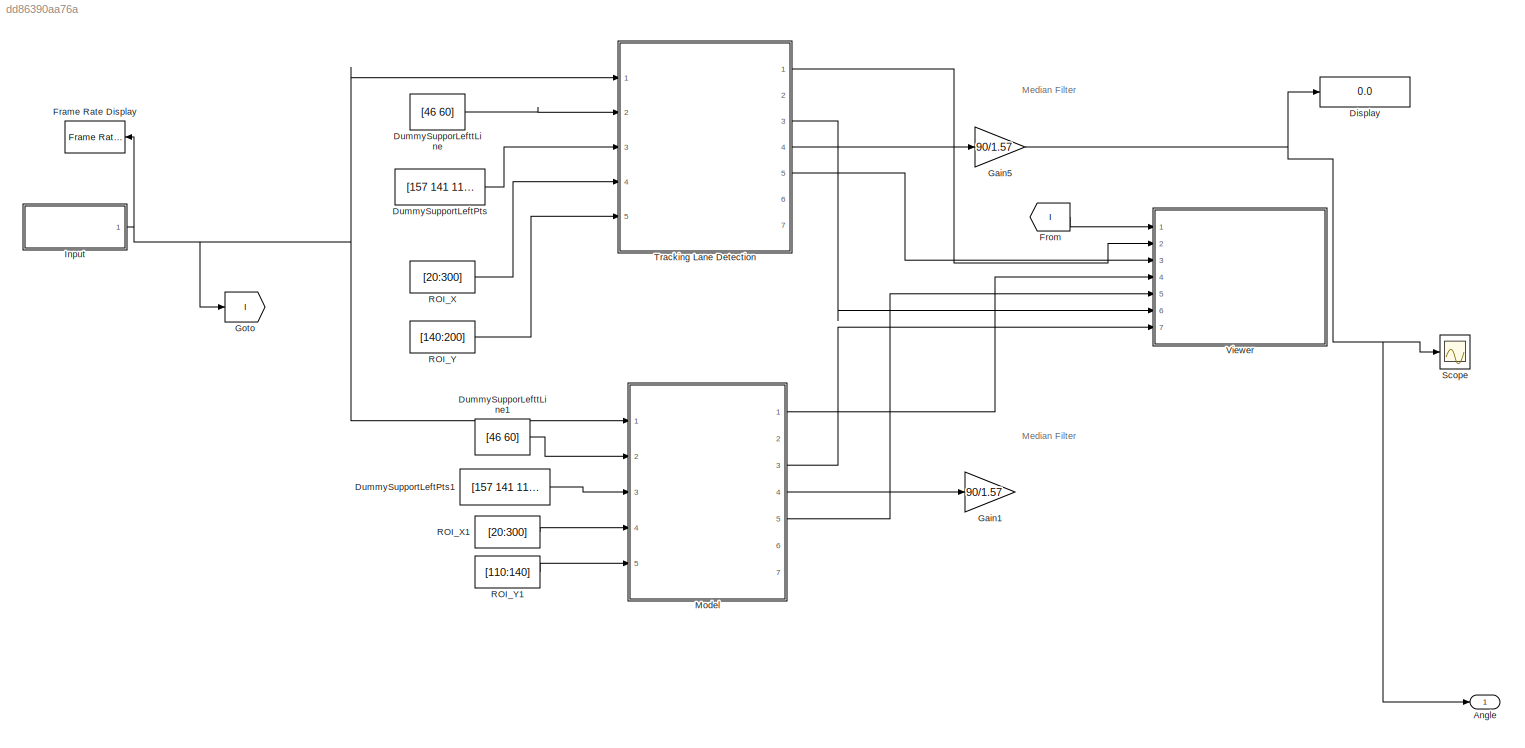
MODEL slx_dd86390aa76a
KIND model
CONFIG AbsTol = auto
CONFIG EnableMultiTasking = on
CONFIG FixedStep = auto
CONFIG MaxStep = auto
CONFIG MinStep = auto
CONFIG RelTol = 1e-3
CONFIG SampleTimeConstraint = Unconstrained
CONFIG Solver = FixedStepAuto
CONFIG SolverName = FixedStepAuto
CONFIG StartTime = 0.0
CONFIG StopTime = 10.0
BLOCK [Outport] Angle
  IconDisplay = Port number
BLOCK [Display] Display
  Decimation = 1
  Ports = [1]
BLOCK [Constant] DummySupporLefttLine
  OutDataTypeStr = double
  Value = [46 60]
  VectorParams1D = off
BLOCK [Constant] DummySupporLefttLine1
  Commented = on
  OutDataTypeStr = double
  Value = [46 60]
  VectorParams1D = off
BLOCK [Constant] DummySupportLeftPts
  OutDataTypeStr = double
  Value = [157 141 111 201]
BLOCK [Constant] DummySupportLeftPts1
  Commented = on
  OutDataTypeStr = double
  Value = [157 141 111 201]
BLOCK [Reference] Frame Rate Display  REF=visionsinks/Frame Rate
Display
  Ports = [1]
  SourceBlock = visionsinks/Frame Rate\nDisplay
  SourceProductBaseCode = VP
  SourceProductName = Computer Vision System Toolbox
  SourceType = Frame Rate Display
BLOCK [From] From
  GotoTag = I
BLOCK [Gain] Gain1
  Gain = 90/1.57
  OutDataTypeStr = Inherit: Inherit via internal rule
  ParamDataTypeStr = Inherit: Inherit via internal rule
  SaturateOnIntegerOverflow = off
BLOCK [Gain] Gain5
  Gain = 90/1.57
  OutDataTypeStr = Inherit: Inherit via internal rule
  ParamDataTypeStr = Inherit: Inherit via internal rule
  SaturateOnIntegerOverflow = off
BLOCK [Goto] Goto
  GotoTag = I
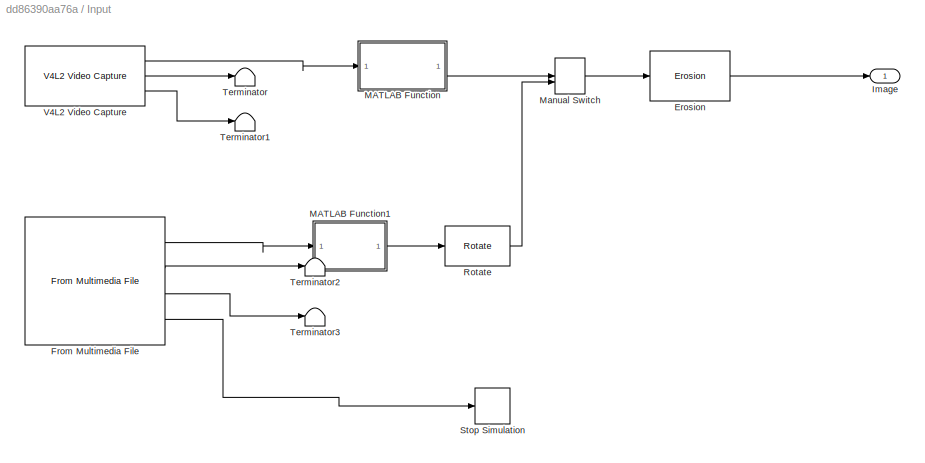
BLOCK [SubSystem] Input 
  Ports = [0, 1]
  RequestExecContextInheritance = off
  Variant = off
BLOCK [Reference] Input /Erosion  REF=visionmorphops/Erosion
  Ports = [1, 1]
  SourceBlock = visionmorphops/Erosion
  SourceProductBaseCode = VP
  SourceProductName = Computer Vision System Toolbox
  SourceType = Erosion
BLOCK [Reference] Input /From Multimedia File  REF=dspvision/From Multimedia File
  Commented = on
  Ports = [0, 4]
  SourceBlock = dspvision/From Multimedia File
  SourceProductBaseCode = VP
  SourceProductName = Computer Vision System Toolbox
  SourceType = From Multimedia File
BLOCK [Outport] Input /Image
  IconDisplay = Port number
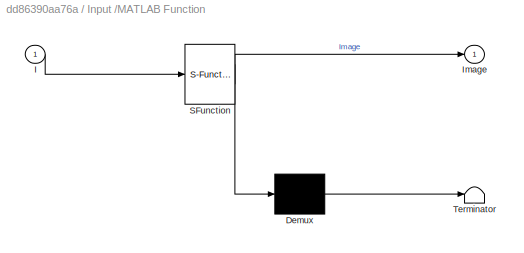
BLOCK [SubSystem] Input /MATLAB Function
  ErrorFcn = Stateflow.Translate.translate
  PermitHierarchicalResolution = ExplicitOnly
  Ports = [1, 1]
  RequestExecContextInheritance = off
  SFBlockType = MATLAB Function
  TreatAsAtomicUnit = on
  Variant = off
BLOCK [Demux] Input /MATLAB Function/ Demux 
  Outputs = 1
  Ports = [1, 1]
BLOCK [S-Function] Input /MATLAB Function/ SFunction 
  EnableBusSupport = on
  FunctionName = sf_sfun
  PortCounts = [1 2]
  Ports = [1, 2]
  SFcnIsStateOwnerBlock = off
  SFunctionDeploymentMode = off
  Tag = Stateflow S-Function picam_lanedepart 2
BLOCK [Terminator] Input /MATLAB Function/ Terminator 
BLOCK [Inport] Input /MATLAB Function/I
  IconDisplay = Port number
BLOCK [Outport] Input /MATLAB Function/Image
  IconDisplay = Port number
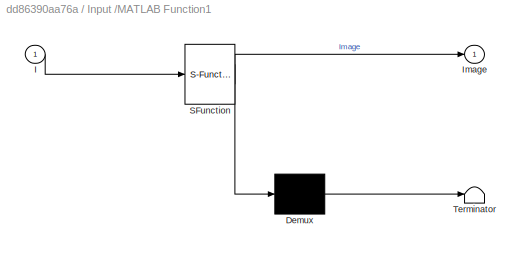
BLOCK [SubSystem] Input /MATLAB Function1
  Commented = on
  ErrorFcn = Stateflow.Translate.translate
  PermitHierarchicalResolution = ExplicitOnly
  Ports = [1, 1]
  RequestExecContextInheritance = off
  SFBlockType = MATLAB Function
  TreatAsAtomicUnit = on
  Variant = off
BLOCK [Demux] Input /MATLAB Function1/ Demux 
  Outputs = 1
  Ports = [1, 1]
BLOCK [S-Function] Input /MATLAB Function1/ SFunction 
  EnableBusSupport = on
  FunctionName = sf_sfun
  PortCounts = [1 2]
  Ports = [1, 2]
  SFcnIsStateOwnerBlock = off
  SFunctionDeploymentMode = off
  Tag = Stateflow S-Function picam_lanedepart 1
BLOCK [Terminator] Input /MATLAB Function1/ Terminator 
BLOCK [Inport] Input /MATLAB Function1/I
  IconDisplay = Port number
BLOCK [Outport] Input /MATLAB Function1/Image
  IconDisplay = Port number
BLOCK [ManualSwitch] Input /Manual Switch
BLOCK [Reference] Input /Rotate  REF=visiongeotforms/Rotate
  Commented = on
  Ports = [1, 1]
  SourceBlock = visiongeotforms/Rotate
  SourceProductBaseCode = VP
  SourceProductName = Computer Vision System Toolbox
  SourceType = Rotate
BLOCK [Stop] Input /Stop Simulation
  Commented = on
BLOCK [Terminator] Input /Terminator
BLOCK [Terminator] Input /Terminator1
BLOCK [Terminator] Input /Terminator2
  Commented = on
BLOCK [Terminator] Input /Terminator3
  Commented = on
BLOCK [Reference] Input /V4L2 Video Capture  REF=embdlinuxlib/V4L2 Video Capture
  Ports = [0, 3]
  SourceBlock = embdlinuxlib/V4L2 Video Capture
  SourceType = V4L2 Video Capture
BLOCK [ModelReference] Model
  Commented = on
  ModelNameDialog = picam_awareness.slx
  ModelReferenceVersion = 1.333
  Ports = [5, 7]
  Variant = off
BLOCK [Constant] ROI_X
  LockScale = on
  Value = [20:300]
BLOCK [Constant] ROI_X1
  Commented = on
  LockScale = on
  Value = [20:300]
BLOCK [Constant] ROI_Y
  LockScale = on
  Value = [140:200]
BLOCK [Constant] ROI_Y1
  Commented = on
  LockScale = on
  Value = [110:140]
BLOCK [Scope] Scope
  NumInputPorts = 1
  Ports = [1]
  ScopeSpecificationString = Simulink.scopes.TimeScopeBlockCfg('CurrentConfiguration', extmgr.ConfigurationSet(extmgr.Configuration('Core','General UI',true),extmgr.Configuration('Core','Source UI',true),extmgr.Configuration('Sources','WiredSimulink',true),extmgr.Configuration('Visuals','Time Domain',true,'SerializedDisplays',{struct('MinYLimReal','-3.07886','MaxYLimReal','5.2918','YLabelReal','','MinYLimMag','0.00000','MaxYL...<+1410ch>
BLOCK [ModelReference] Tracking Lane Detection
  ModelNameDialog = picam_track.slx
  ModelReferenceVersion = 1.6
  Ports = [5, 7]
  Variant = off
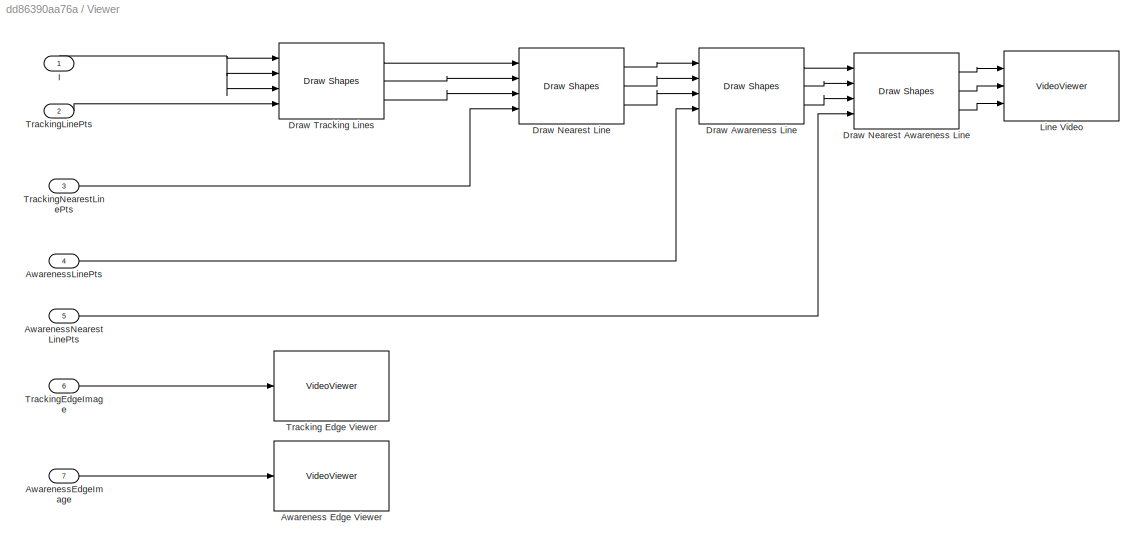
BLOCK [SubSystem] Viewer
  Ports = [7]
  RequestExecContextInheritance = off
  Variant = off
BLOCK [VideoViewer] Viewer/Awareness Edge Viewer
  FigPos = [863 724 418 304]
  Ports = [1]
  ScopeSpecificationString = vipscopes.VideoViewerScopeCfg('CurrentConfiguration', extmgr.ConfigurationSet(extmgr.Configuration('Core','General UI',true),extmgr.Configuration('Core','Source UI',true),extmgr.Configuration('Sources','WiredSimulink',true),extmgr.Configuration('Visuals','Video',true),extmgr.Configuration('Tools','Image Navigation Tools',true),extmgr.Configuration('Tools','Image Tool',true),extmgr.Configuration('T...<+74ch>
BLOCK [Inport] Viewer/AwarenessEdgeImage
  IconDisplay = Port number
  Port = 7
BLOCK [Inport] Viewer/AwarenessLinePts
  IconDisplay = Port number
  Port = 4
BLOCK [Inport] Viewer/AwarenessNearestLinePts
  IconDisplay = Port number
  Port = 5
BLOCK [Reference] Viewer/Draw Awareness Line  REF=visiontextngfix/Draw Shapes
  Ports = [4, 3]
  SourceBlock = visiontextngfix/Draw Shapes
  SourceProductBaseCode = VP
  SourceProductName = Computer Vision System Toolbox
  SourceType = Draw Shapes
BLOCK [Reference] Viewer/Draw Nearest Awareness Line  REF=visiontextngfix/Draw Shapes
  Ports = [4, 3]
  SourceBlock = visiontextngfix/Draw Shapes
  SourceProductBaseCode = VP
  SourceProductName = Computer Vision System Toolbox
  SourceType = Draw Shapes
BLOCK [Reference] Viewer/Draw Nearest Line  REF=visiontextngfix/Draw Shapes
  Ports = [4, 3]
  SourceBlock = visiontextngfix/Draw Shapes
  SourceProductBaseCode = VP
  SourceProductName = Computer Vision System Toolbox
  SourceType = Draw Shapes
BLOCK [Reference] Viewer/Draw Tracking Lines  REF=visiontextngfix/Draw Shapes
  Ports = [4, 3]
  SourceBlock = visiontextngfix/Draw Shapes
  SourceProductBaseCode = VP
  SourceProductName = Computer Vision System Toolbox
  SourceType = Draw Shapes
BLOCK [Inport] Viewer/I
  IconDisplay = Port number
  OutDataTypeStr = uint8
BLOCK [VideoViewer] Viewer/Line Video
  FigPos = [61 592.4 417.6 304]
  Ports = [3]
  ScopeSpecificationString = vipscopes.VideoViewerScopeCfg('CurrentConfiguration', extmgr.ConfigurationSet(extmgr.Configuration('Core','General UI',true),extmgr.Configuration('Core','Source UI',true),extmgr.Configuration('Sources','WiredSimulink',true),extmgr.Configuration('Visuals','Video',true),extmgr.Configuration('Tools','Image Navigation Tools',true),extmgr.Configuration('Tools','Image Tool',true),extmgr.Configuration('T...<+78ch>
  colormapValue = gray(256)
  imagePorts = separate color signals
BLOCK [VideoViewer] Viewer/Tracking Edge Viewer
  FigPos = [575 751 418 304]
  Ports = [1]
  ScopeSpecificationString = vipscopes.VideoViewerScopeCfg('CurrentConfiguration', extmgr.ConfigurationSet(extmgr.Configuration('Core','General UI',true),extmgr.Configuration('Core','Source UI',true),extmgr.Configuration('Sources','WiredSimulink',true),extmgr.Configuration('Visuals','Video',true),extmgr.Configuration('Tools','Image Navigation Tools',true),extmgr.Configuration('Tools','Image Tool',true),extmgr.Configuration('T...<+74ch>
BLOCK [Inport] Viewer/TrackingEdgeImage
  IconDisplay = Port number
  Port = 6
BLOCK [Inport] Viewer/TrackingLinePts
  IconDisplay = Port number
  Port = 2
BLOCK [Inport] Viewer/TrackingNearestLinePts
  IconDisplay = Port number
  Port = 3
ANNOTATION (root): Median Filter
LINE DummySupporLefttLine1:1 -> Model:2
LINE DummySupporLefttLine:1 -> Tracking Lane Detection:2
LINE DummySupportLeftPts1:1 -> Model:3
LINE DummySupportLeftPts:1 -> Tracking Lane Detection:3
LINE From:1 -> Viewer:1
NET Gain5:1 -> Angle:1, Display:1, Scope:1
LINE Input /Erosion:1 -> Input /Image:1
LINE Input /From Multimedia File:1 -> Input /MATLAB Function1:1
LINE Input /From Multimedia File:2 -> Input /Terminator2:1
LINE Input /From Multimedia File:3 -> Input /Terminator3:1
LINE Input /From Multimedia File:4 -> Input /Stop Simulation:1
LINE Input /MATLAB Function1:1 -> Input /Rotate:1
LINE Input /MATLAB Function:1 -> Input /Manual Switch:1
LINE Input /Manual Switch:1 -> Input /Erosion:1
LINE Input /Rotate:1 -> Input /Manual Switch:2
LINE Input /V4L2 Video Capture:1 -> Input /MATLAB Function:1
LINE Input /V4L2 Video Capture:2 -> Input /Terminator:1
LINE Input /V4L2 Video Capture:3 -> Input /Terminator1:1
NET Input :1 -> Frame Rate Display:1, Goto:1, Model:1, Tracking Lane Detection:1
LINE Model:1 -> Viewer:4
LINE Model:3 -> Viewer:7
LINE Model:4 -> Gain1:1
LINE Model:5 -> Viewer:5
LINE ROI_X1:1 -> Model:4
LINE ROI_X:1 -> Tracking Lane Detection:4
LINE ROI_Y1:1 -> Model:5
LINE ROI_Y:1 -> Tracking Lane Detection:5
LINE Tracking Lane Detection:1 -> Viewer:2
LINE Tracking Lane Detection:3 -> Viewer:6
LINE Tracking Lane Detection:4 -> Gain5:1
LINE Tracking Lane Detection:5 -> Viewer:3
LINE Viewer/AwarenessEdgeImage:1 -> Viewer/Awareness Edge Viewer:1
LINE Viewer/AwarenessLinePts:1 -> Viewer/Draw Awareness Line:4
LINE Viewer/AwarenessNearestLinePts:1 -> Viewer/Draw Nearest Awareness Line:4
LINE Viewer/Draw Awareness Line:1 -> Viewer/Draw Nearest Awareness Line:1
LINE Viewer/Draw Awareness Line:2 -> Viewer/Draw Nearest Awareness Line:2
LINE Viewer/Draw Awareness Line:3 -> Viewer/Draw Nearest Awareness Line:3
LINE Viewer/Draw Nearest Awareness Line:1 -> Viewer/Line Video:1
LINE Viewer/Draw Nearest Awareness Line:2 -> Viewer/Line Video:2
LINE Viewer/Draw Nearest Awareness Line:3 -> Viewer/Line Video:3
LINE Viewer/Draw Nearest Line:1 -> Viewer/Draw Awareness Line:1
LINE Viewer/Draw Nearest Line:2 -> Viewer/Draw Awareness Line:2
LINE Viewer/Draw Nearest Line:3 -> Viewer/Draw Awareness Line:3
LINE Viewer/Draw Tracking Lines:1 -> Viewer/Draw Nearest Line:1
LINE Viewer/Draw Tracking Lines:2 -> Viewer/Draw Nearest Line:2
LINE Viewer/Draw Tracking Lines:3 -> Viewer/Draw Nearest Line:3
NET Viewer/I:1 -> Viewer/Draw Tracking Lines:1, Viewer/Draw Tracking Lines:2, Viewer/Draw Tracking Lines:3
LINE Viewer/TrackingEdgeImage:1 -> Viewer/Tracking Edge Viewer:1
LINE Viewer/TrackingLinePts:1 -> Viewer/Draw Tracking Lines:4
LINE Viewer/TrackingNearestLinePts:1 -> Viewer/Draw Nearest Line:4
note: NET lines group one-source signal fan-out (src -> all destinations, sorted); 1:1 wires keep LINE
CHART Input
/MATLAB Function1 states=1 transitions=1
  STATE_LABEL 'eML_blk_kernel()'
  STATE_LABEL "SCRIPT:\nfunction Image = Flip(I)\n\nImage = imrotate(I,180,'bilinear');"
CHART Input
/MATLAB Function states=1 transitions=1
  STATE_LABEL 'eML_blk_kernel()'
  STATE_LABEL "SCRIPT:\nfunction Image = FlipAndRotate(I)\nImage = imrotate(I,90,'bilinear');\nImage = flip(Image,2);\n\n"
